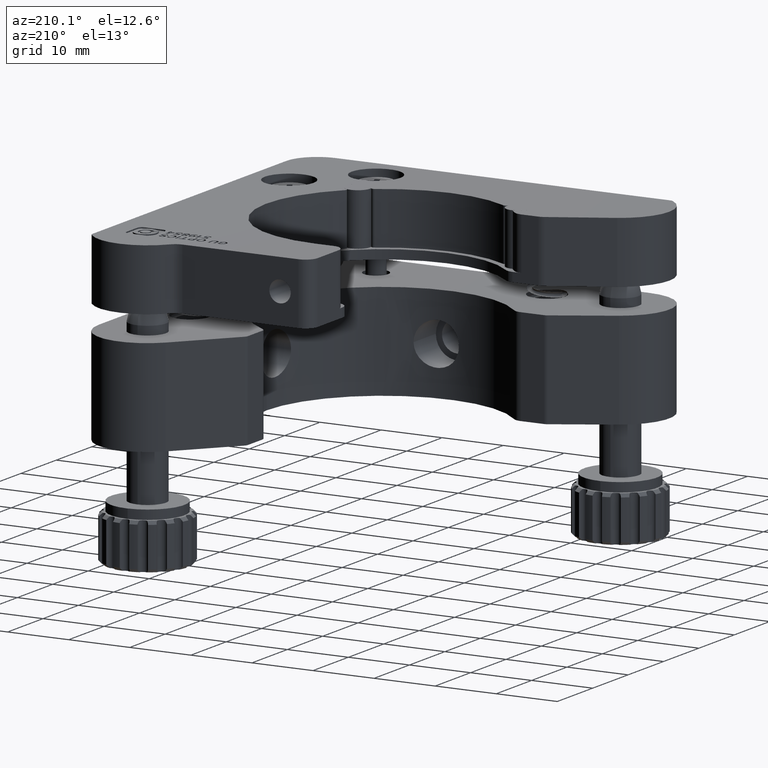
[diagram: clean part render]
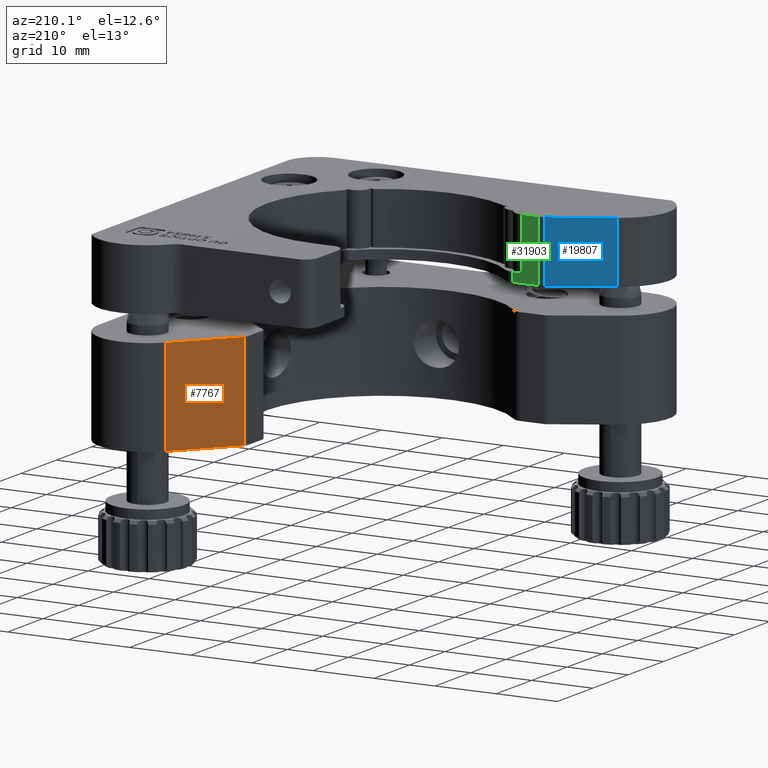
[diagram: same view with three faces highlighted in distinct colors, each labeled with its STEP entity id]
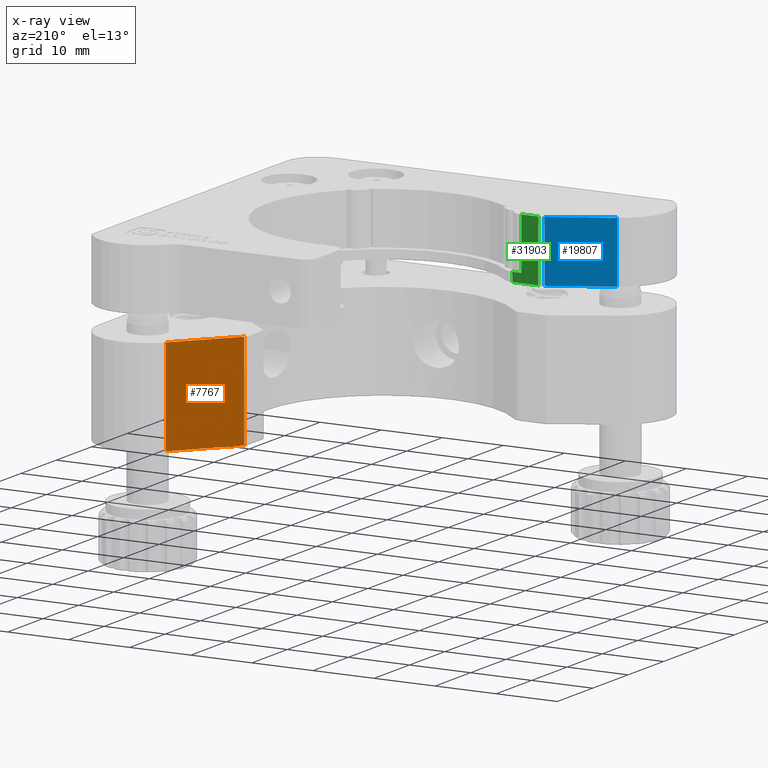
[diagram: x-ray of the same camera — body ghosted, the three highlighted faces saturated]
A machine part, auxiliary view with three faces highlighted in distinct colors.
The next image is the same camera in x-ray (body ghosted, the three faces saturated) — at least one of them is partly hidden behind the body in this view.
Their STEP definitions:

[orange] entity #7767 — the highlighted planar face has unit normal (-0.7523, 0.6588, 0).
#703 = DIRECTION ( 'NONE',  ( -0.6587809650843353700, -0.7523347925242802600, 0.0000000000000000000 ) ) ;
#2579 = VERTEX_POINT ( 'NONE', #27672 ) ;
#3624 = EDGE_LOOP ( 'NONE', ( #24291, #28153, #8363, #36591 ) ) ;
#5877 = VECTOR ( 'NONE', #703, 1000.000000000000000 ) ;
#5995 = CARTESIAN_POINT ( 'NONE',  ( -14.01867834019423300, 62.27024772067469600, 0.0000000000000000000 ) ) ;
#7767 = ADVANCED_FACE ( 'NONE', ( #21344 ), #11006, .T. ) ;
#8363 = ORIENTED_EDGE ( 'NONE', *, *, #11478, .F. ) ;
#8499 = VECTOR ( 'NONE', #12474, 1000.000000000000000 ) ;
#9132 = VECTOR ( 'NONE', #31105, 1000.000000000000000 ) ;
#9253 = CARTESIAN_POINT ( 'NONE',  ( -21.75233479252427700, 53.43833069378710100, 0.0000000000000000000 ) ) ;
#10533 = CARTESIAN_POINT ( 'NONE',  ( -14.01867834019423300, 62.27024772067469600, 15.80000000000000100 ) ) ;
#11006 = PLANE ( 'NONE',  #35232 ) ;
#11478 = EDGE_CURVE ( 'NONE', #27622, #2579, #30159, .T. ) ;
#11674 = CARTESIAN_POINT ( 'NONE',  ( -21.75233479252427700, 53.43833069378710100, 0.0000000000000000000 ) ) ;
#12474 = DIRECTION ( 'NONE',  ( -0.6587809650843353700, -0.7523347925242802600, 0.0000000000000000000 ) ) ;
#12568 = CARTESIAN_POINT ( 'NONE',  ( -21.75233479252427700, 53.43833069378710100, 15.80000000000000100 ) ) ;
#12716 = LINE ( 'NONE', #34060, #26830 ) ;
#17219 = DIRECTION ( 'NONE',  ( 0.0000000000000000000, 0.0000000000000000000, -1.000000000000000000 ) ) ;
#18162 = EDGE_CURVE ( 'NONE', #2579, #26863, #23320, .T. ) ;
#19997 = CARTESIAN_POINT ( 'NONE',  ( -21.75233479252427700, 53.43833069378710100, 15.80000000000000100 ) ) ;
#20720 = EDGE_CURVE ( 'NONE', #27622, #20986, #12716, .T. ) ;
#20986 = VERTEX_POINT ( 'NONE', #5995 ) ;
#21344 = FACE_OUTER_BOUND ( 'NONE', #3624, .T. ) ;
#21585 = DIRECTION ( 'NONE',  ( -0.7523347925242801500, 0.6587809650843354800, 0.0000000000000000000 ) ) ;
#22772 = EDGE_CURVE ( 'NONE', #20986, #26863, #35017, .T. ) ;
#23320 = LINE ( 'NONE', #30987, #9132 ) ;
#24291 = ORIENTED_EDGE ( 'NONE', *, *, #22772, .T. ) ;
#25218 = DIRECTION ( 'NONE',  ( -0.6587809650843354800, -0.7523347925242801500, -0.0000000000000000000 ) ) ;
#26830 = VECTOR ( 'NONE', #17219, 1000.000000000000000 ) ;
#26863 = VERTEX_POINT ( 'NONE', #11674 ) ;
#27622 = VERTEX_POINT ( 'NONE', #10533 ) ;
#27672 = CARTESIAN_POINT ( 'NONE',  ( -21.75233479252427700, 53.43833069378710100, 15.80000000000000100 ) ) ;
#28153 = ORIENTED_EDGE ( 'NONE', *, *, #18162, .F. ) ;
#30159 = LINE ( 'NONE', #12568, #8499 ) ;
#30987 = CARTESIAN_POINT ( 'NONE',  ( -21.75233479252427700, 53.43833069378710100, 15.80000000000000100 ) ) ;
#31105 = DIRECTION ( 'NONE',  ( 0.0000000000000000000, 0.0000000000000000000, -1.000000000000000000 ) ) ;
#34060 = CARTESIAN_POINT ( 'NONE',  ( -14.01867834019423300, 62.27024772067469600, 15.80000000000000100 ) ) ;
#35017 = LINE ( 'NONE', #9253, #5877 ) ;
#35232 = AXIS2_PLACEMENT_3D ( 'NONE', #19997, #21585, #25218 ) ;
#36591 = ORIENTED_EDGE ( 'NONE', *, *, #20720, .T. ) ;

[blue] entity #19807 — the highlighted planar face has unit normal (-0.4514, 0.8923, 0).
#1551 = AXIS2_PLACEMENT_3D ( 'NONE', #15895, #35588, #18741 ) ;
#1558 = CARTESIAN_POINT ( 'NONE',  ( -51.42567765380897500, 19.78468864095126300, 20.00000000000000400 ) ) ;
#2062 = ORIENTED_EDGE ( 'NONE', *, *, #3172, .T. ) ;
#3172 = EDGE_CURVE ( 'NONE', #24376, #26240, #32890, .T. ) ;
#3601 = EDGE_CURVE ( 'NONE', #8767, #11965, #20465, .T. ) ;
#3985 = CARTESIAN_POINT ( 'NONE',  ( -51.42567765380897500, 19.78468864095126300, 20.00000000000000400 ) ) ;
#4864 = ORIENTED_EDGE ( 'NONE', *, *, #23580, .F. ) ;
#6528 = CARTESIAN_POINT ( 'NONE',  ( -60.61084246094347300, 15.13875456380505500, 30.00000000000000400 ) ) ;
#6971 = DIRECTION ( 'NONE',  ( 0.0000000000000000000, 0.0000000000000000000, 1.000000000000000000 ) ) ;
#7520 = ORIENTED_EDGE ( 'NONE', *, *, #3601, .F. ) ;
#7638 = DIRECTION ( 'NONE',  ( -0.8923443204756332800, -0.4513553076179345200, 0.0000000000000000000 ) ) ;
#8767 = VERTEX_POINT ( 'NONE', #1558 ) ;
#8908 = CARTESIAN_POINT ( 'NONE',  ( -51.42567765380897500, 19.78468864095126300, 30.00000000000000400 ) ) ;
#9568 = CARTESIAN_POINT ( 'NONE',  ( -51.42567765380897500, 19.78468864095126300, 20.00000000000000400 ) ) ;
#9625 = EDGE_CURVE ( 'NONE', #8767, #24376, #12209, .T. ) ;
#9772 = DIRECTION ( 'NONE',  ( -0.8923443204756332800, -0.4513553076179345200, 0.0000000000000000000 ) ) ;
#11965 = VERTEX_POINT ( 'NONE', #8908 ) ;
#12209 = LINE ( 'NONE', #9568, #19794 ) ;
#14009 = VECTOR ( 'NONE', #7638, 1000.000000000000100 ) ;
#14063 = ORIENTED_EDGE ( 'NONE', *, *, #9625, .T. ) ;
#15895 = CARTESIAN_POINT ( 'NONE',  ( -51.42567765380897500, 19.78468864095126300, 20.00000000000000400 ) ) ;
#16888 = FACE_OUTER_BOUND ( 'NONE', #25796, .T. ) ;
#17896 = VECTOR ( 'NONE', #29395, 1000.000000000000000 ) ;
#18741 = DIRECTION ( 'NONE',  ( -0.8923443204756332800, -0.4513553076179344600, 0.0000000000000000000 ) ) ;
#18907 = CARTESIAN_POINT ( 'NONE',  ( -51.42567765380897500, 19.78468864095126300, 30.00000000000000400 ) ) ;
#19585 = VECTOR ( 'NONE', #6971, 1000.000000000000000 ) ;
#19794 = VECTOR ( 'NONE', #9772, 1000.000000000000100 ) ;
#19807 = ADVANCED_FACE ( 'NONE', ( #16888 ), #21471, .T. ) ;
#20465 = LINE ( 'NONE', #3985, #19585 ) ;
#21471 = PLANE ( 'NONE',  #1551 ) ;
#21548 = LINE ( 'NONE', #18907, #14009 ) ;
#23580 = EDGE_CURVE ( 'NONE', #11965, #26240, #21548, .T. ) ;
#24376 = VERTEX_POINT ( 'NONE', #33121 ) ;
#25796 = EDGE_LOOP ( 'NONE', ( #4864, #7520, #14063, #2062 ) ) ;
#26240 = VERTEX_POINT ( 'NONE', #6528 ) ;
#29395 = DIRECTION ( 'NONE',  ( 0.0000000000000000000, 0.0000000000000000000, 1.000000000000000000 ) ) ;
#32890 = LINE ( 'NONE', #35195, #17896 ) ;
#33121 = CARTESIAN_POINT ( 'NONE',  ( -60.61084246094347300, 15.13875456380505500, 20.00000000000000400 ) ) ;
#35195 = CARTESIAN_POINT ( 'NONE',  ( -60.61084246094347300, 15.13875456380505500, 20.00000000000000400 ) ) ;
#35588 = DIRECTION ( 'NONE',  ( -0.4513553076179344600, 0.8923443204756332800, 0.0000000000000000000 ) ) ;

[green] entity #31903 — the highlighted planar face has unit normal (0, 1, -0).
#33 = DIRECTION ( 'NONE',  ( 0.0000000000000000000, 0.0000000000000000000, 1.000000000000000000 ) ) ;
#182 = PLANE ( 'NONE',  #34613 ) ;
#432 = CARTESIAN_POINT ( 'NONE',  ( -46.28285685708569700, 19.99999999999999600, 20.00000000000000400 ) ) ;
#2053 = DIRECTION ( 'NONE',  ( -1.000000000000000000, 0.0000000000000000000, 0.0000000000000000000 ) ) ;
#2883 = CARTESIAN_POINT ( 'NONE',  ( -46.28285685708569700, 19.99999999999999600, 20.00000000000000400 ) ) ;
#3132 = CARTESIAN_POINT ( 'NONE',  ( -47.71949426667410400, 19.99999999999999600, 30.00000000000000400 ) ) ;
#3153 = DIRECTION ( 'NONE',  ( -1.000000000000000000, 0.0000000000000000000, 0.0000000000000000000 ) ) ;
#3902 = DIRECTION ( 'NONE',  ( 0.0000000000000000000, 0.0000000000000000000, 1.000000000000000000 ) ) ;
#4410 = VERTEX_POINT ( 'NONE', #27865 ) ;
#4646 = CARTESIAN_POINT ( 'NONE',  ( -47.71949426667410400, 19.99999999999999600, 21.50000000000000000 ) ) ;
#6566 = VERTEX_POINT ( 'NONE', #17082 ) ;
#6979 = EDGE_CURVE ( 'NONE', #11325, #4410, #10487, .T. ) ;
#7665 = VECTOR ( 'NONE', #3153, 1000.000000000000000 ) ;
#9541 = FACE_OUTER_BOUND ( 'NONE', #17683, .T. ) ;
#10150 = VECTOR ( 'NONE', #2053, 1000.000000000000000 ) ;
#10487 = LINE ( 'NONE', #15888, #25506 ) ;
#10926 = VECTOR ( 'NONE', #3902, 1000.000000000000000 ) ;
#11325 = VERTEX_POINT ( 'NONE', #22441 ) ;
#12233 = EDGE_CURVE ( 'NONE', #24923, #11325, #25216, .T. ) ;
#12997 = ORIENTED_EDGE ( 'NONE', *, *, #6979, .T. ) ;
#13820 = LINE ( 'NONE', #34112, #27931 ) ;
#14293 = VERTEX_POINT ( 'NONE', #3132 ) ;
#14400 = DIRECTION ( 'NONE',  ( 0.0000000000000000000, 1.000000000000000000, -0.0000000000000000000 ) ) ;
#14910 = EDGE_CURVE ( 'NONE', #24923, #16584, #25920, .T. ) ;
#15164 = LINE ( 'NONE', #22989, #7665 ) ;
#15391 = CARTESIAN_POINT ( 'NONE',  ( -46.28285685708569700, 19.99999999999999300, 21.50000000000000000 ) ) ;
#15848 = EDGE_CURVE ( 'NONE', #14293, #4410, #15164, .T. ) ;
#15888 = CARTESIAN_POINT ( 'NONE',  ( -50.52296703857310700, 19.99999999999999600, 20.00000000000000400 ) ) ;
#16584 = VERTEX_POINT ( 'NONE', #15391 ) ;
#17082 = CARTESIAN_POINT ( 'NONE',  ( -47.71949426667410400, 19.99999999999999600, 21.50000000000000000 ) ) ;
#17280 = DIRECTION ( 'NONE',  ( -0.0000000000000000000, -0.0000000000000000000, 1.000000000000000000 ) ) ;
#17683 = EDGE_LOOP ( 'NONE', ( #31985, #18223, #27405, #34110, #21911, #12997 ) ) ;
#17739 = EDGE_CURVE ( 'NONE', #16584, #6566, #20234, .T. ) ;
#18018 = CARTESIAN_POINT ( 'NONE',  ( -46.28285685708569700, 19.99999999999999600, 20.00000000000000400 ) ) ;
#18223 = ORIENTED_EDGE ( 'NONE', *, *, #25511, .F. ) ;
#20234 = LINE ( 'NONE', #4646, #27710 ) ;
#21911 = ORIENTED_EDGE ( 'NONE', *, *, #12233, .T. ) ;
#22441 = CARTESIAN_POINT ( 'NONE',  ( -50.52296703857310700, 19.99999999999999600, 20.00000000000000400 ) ) ;
#22989 = CARTESIAN_POINT ( 'NONE',  ( -46.28285685708569700, 19.99999999999999600, 30.00000000000000400 ) ) ;
#24923 = VERTEX_POINT ( 'NONE', #432 ) ;
#25216 = LINE ( 'NONE', #2883, #10150 ) ;
#25506 = VECTOR ( 'NONE', #33, 1000.000000000000000 ) ;
#25511 = EDGE_CURVE ( 'NONE', #6566, #14293, #13820, .T. ) ;
#25920 = LINE ( 'NONE', #18018, #10926 ) ;
#27008 = DIRECTION ( 'NONE',  ( -1.000000000000000000, -0.0000000000000000000, -0.0000000000000000000 ) ) ;
#27405 = ORIENTED_EDGE ( 'NONE', *, *, #17739, .F. ) ;
#27710 = VECTOR ( 'NONE', #27008, 1000.000000000000000 ) ;
#27865 = CARTESIAN_POINT ( 'NONE',  ( -50.52296703857310700, 19.99999999999999600, 30.00000000000000400 ) ) ;
#27931 = VECTOR ( 'NONE', #17280, 1000.000000000000000 ) ;
#31309 = CARTESIAN_POINT ( 'NONE',  ( -46.28285685708569700, 19.99999999999999600, 20.00000000000000400 ) ) ;
#31903 = ADVANCED_FACE ( 'NONE', ( #9541 ), #182, .T. ) ;
#31985 = ORIENTED_EDGE ( 'NONE', *, *, #15848, .F. ) ;
#34110 = ORIENTED_EDGE ( 'NONE', *, *, #14910, .F. ) ;
#34112 = CARTESIAN_POINT ( 'NONE',  ( -47.71949426667410400, 19.99999999999999600, 21.50000000000000000 ) ) ;
#34128 = DIRECTION ( 'NONE',  ( 0.0000000000000000000, 0.0000000000000000000, 1.000000000000000000 ) ) ;
#34613 = AXIS2_PLACEMENT_3D ( 'NONE', #31309, #14400, #34128 ) ;